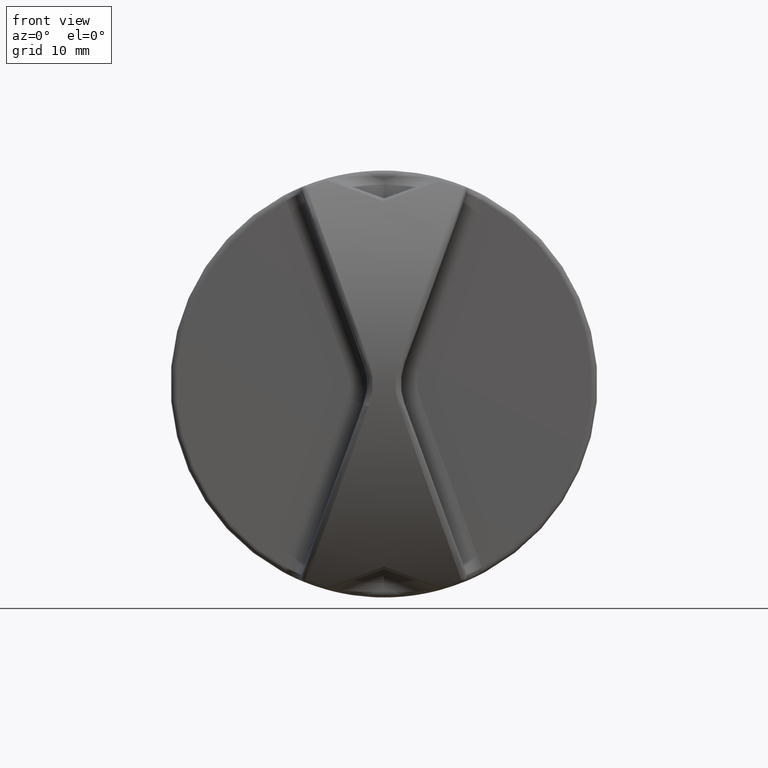
[diagram: clean part render]
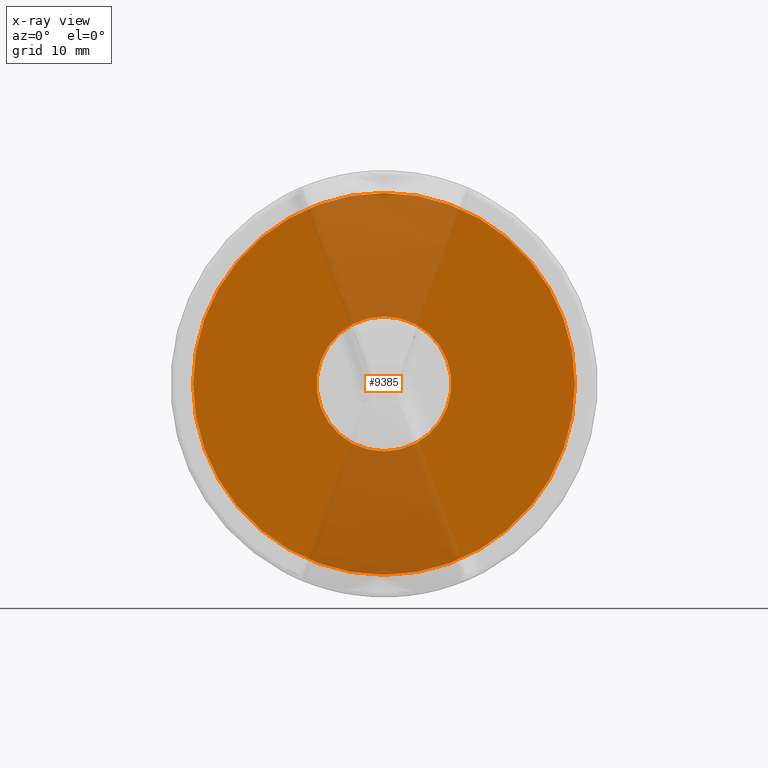
[diagram: x-ray — body ghosted, one internal face saturated and labeled with its STEP entity id]
A machine part, front view, then the same camera in x-ray: the body is ghosted and one INTERNAL B-rep face — a face not visible from any outside direction — is saturated and labeled: STEP entity #9385.
In plain terms, the highlighted planar face has unit normal (0, -1, 0).
Its self-contained STEP definition (entity closure, byte-faithful):
#6858 = CARTESIAN_POINT ( 'NONE',  ( -2.000000000000000000, 0.0000000000000000000, 17.00000000000000000 ) ) ;
#6859 = DIRECTION ( 'NONE',  ( 0.0000000000000000000, 0.0000000000000000000, 1.000000000000000000 ) ) ;
#6860 = DIRECTION ( 'NONE',  ( -1.000000000000000000, 0.0000000000000000000, 0.0000000000000000000 ) ) ;
#6861 = CARTESIAN_POINT ( 'NONE',  ( -2.000000000000000000, 0.0000000000000000000, 0.0000000000000000000 ) ) ;
#6862 = AXIS2_PLACEMENT_3D ( 'NONE', #6861, #6860, #6859 ) ;
#6863 = CIRCLE ( 'NONE', #6862, 17.00000000000000000 ) ;
#6864 = CARTESIAN_POINT ( 'NONE',  ( -2.000000000000000000, 2.081899558550500300E-015, -17.00000000000000000 ) ) ;
#7036 = CARTESIAN_POINT ( 'NONE',  ( -2.000000000000000000, 0.0000000000000000000, 6.000000000000000000 ) ) ;
#7037 = DIRECTION ( 'NONE',  ( 0.0000000000000000000, 0.0000000000000000000, 1.000000000000000000 ) ) ;
#7038 = DIRECTION ( 'NONE',  ( 1.000000000000000000, 0.0000000000000000000, 0.0000000000000000000 ) ) ;
#7039 = CARTESIAN_POINT ( 'NONE',  ( -2.000000000000000000, 0.0000000000000000000, 0.0000000000000000000 ) ) ;
#7040 = AXIS2_PLACEMENT_3D ( 'NONE', #7039, #7038, #7037 ) ;
#7041 = CIRCLE ( 'NONE', #7040, 6.000000000000000000 ) ;
#7042 = CARTESIAN_POINT ( 'NONE',  ( -2.000000000000000000, 7.347880794884119700E-016, -6.000000000000000000 ) ) ;
#7213 = DIRECTION ( 'NONE',  ( 0.0000000000000000000, 0.0000000000000000000, 1.000000000000000000 ) ) ;
#7214 = DIRECTION ( 'NONE',  ( -1.000000000000000000, 0.0000000000000000000, 0.0000000000000000000 ) ) ;
#7215 = AXIS2_PLACEMENT_3D ( 'NONE', #7222, #7214, #7213 ) ;
#7216 = CIRCLE ( 'NONE', #7215, 17.00000000000000000 ) ;
#7222 = CARTESIAN_POINT ( 'NONE',  ( -2.000000000000000000, 0.0000000000000000000, 0.0000000000000000000 ) ) ;
#7240 = FACE_BOUND ( 'NONE', #9359, .T. ) ;
#7241 = FACE_OUTER_BOUND ( 'NONE', #9331, .T. ) ;
#7246 = PLANE ( 'NONE',  #7309 ) ;
#7252 = DIRECTION ( 'NONE',  ( 0.0000000000000000000, 0.0000000000000000000, 1.000000000000000000 ) ) ;
#7253 = DIRECTION ( 'NONE',  ( 1.000000000000000000, 0.0000000000000000000, 0.0000000000000000000 ) ) ;
#7254 = AXIS2_PLACEMENT_3D ( 'NONE', #7259, #7253, #7252 ) ;
#7255 = CIRCLE ( 'NONE', #7254, 6.000000000000000000 ) ;
#7259 = CARTESIAN_POINT ( 'NONE',  ( -2.000000000000000000, 0.0000000000000000000, 0.0000000000000000000 ) ) ;
#7306 = DIRECTION ( 'NONE',  ( 0.0000000000000000000, 0.0000000000000000000, 1.000000000000000000 ) ) ;
#7307 = DIRECTION ( 'NONE',  ( -1.000000000000000000, 0.0000000000000000000, 0.0000000000000000000 ) ) ;
#7308 = CARTESIAN_POINT ( 'NONE',  ( -2.000000000000000000, 0.0000000000000000000, 0.0000000000000000000 ) ) ;
#7309 = AXIS2_PLACEMENT_3D ( 'NONE', #7308, #7307, #7306 ) ;
#9165 = VERTEX_POINT ( 'NONE', #6864 ) ;
#9167 = EDGE_CURVE ( 'NONE', #9168, #9165, #6863, .T. ) ;
#9168 = VERTEX_POINT ( 'NONE', #6858 ) ;
#9244 = VERTEX_POINT ( 'NONE', #7042 ) ;
#9246 = EDGE_CURVE ( 'NONE', #9247, #9244, #7041, .T. ) ;
#9247 = VERTEX_POINT ( 'NONE', #7036 ) ;
#9331 = EDGE_LOOP ( 'NONE', ( #9383, #9354 ) ) ;
#9354 = ORIENTED_EDGE ( 'NONE', *, *, #9355, .T. ) ;
#9355 = EDGE_CURVE ( 'NONE', #9165, #9168, #7216, .T. ) ;
#9359 = EDGE_LOOP ( 'NONE', ( #9369, #9370 ) ) ;
#9369 = ORIENTED_EDGE ( 'NONE', *, *, #9246, .T. ) ;
#9370 = ORIENTED_EDGE ( 'NONE', *, *, #9377, .T. ) ;
#9377 = EDGE_CURVE ( 'NONE', #9244, #9247, #7255, .T. ) ;
#9383 = ORIENTED_EDGE ( 'NONE', *, *, #9167, .T. ) ;
#9385 = ADVANCED_FACE ( 'NONE', ( #7241, #7240 ), #7246, .T. ) ;